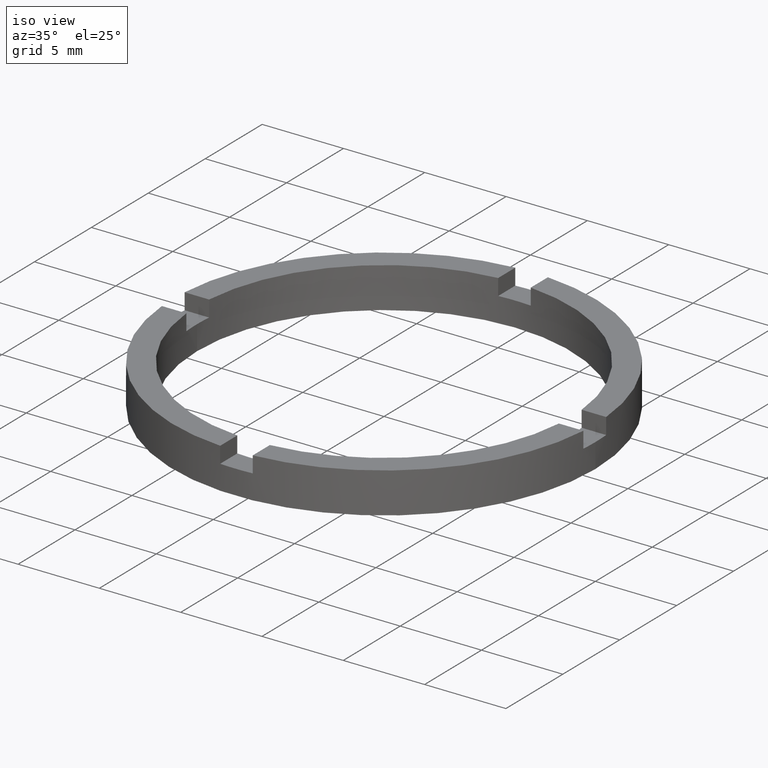
[diagram: clean part render]
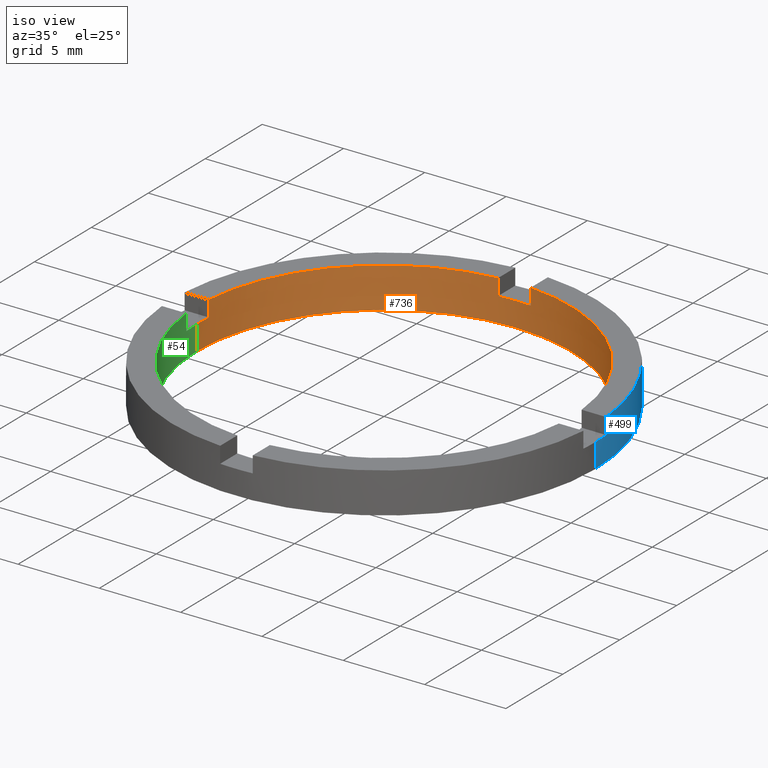
[diagram: same view with three faces highlighted in distinct colors, each labeled with its STEP entity id]
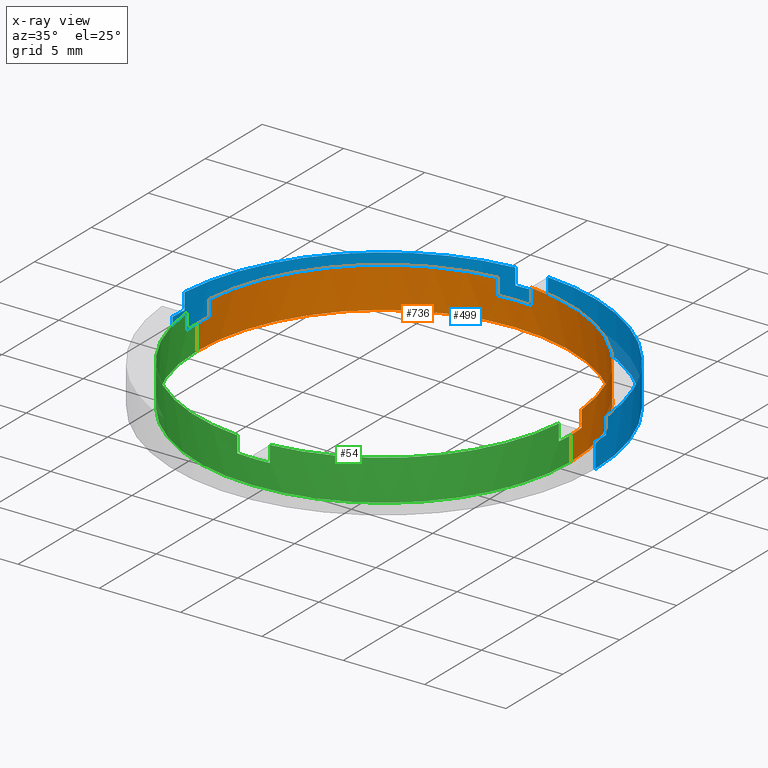
[diagram: x-ray of the same camera — body ghosted, the three highlighted faces saturated]
A machine part, iso view with three faces highlighted in distinct colors.
The next image is the same camera in x-ray (body ghosted, the three faces saturated) — at least one of them is partly hidden behind the body in this view.
Their STEP definitions:

[orange] entity #736 — the highlighted cylindrical surface (partial cylindrical patch) has radius 11.5 mm, axis along (-0, -0, -1).
#18 = AXIS2_PLACEMENT_3D ( 'NONE', #191, #681, #197 ) ;
#25 = EDGE_CURVE ( 'NONE', #164, #709, #720, .T. ) ;
#29 = CARTESIAN_POINT ( 'NONE',  ( 11.50000000000000000, 1.408343819019456176E-15, 1.500000000000000000 ) ) ;
#41 = CIRCLE ( 'NONE', #481, 11.50000000000000000 ) ;
#45 = EDGE_CURVE ( 'NONE', #461, #382, #725, .T. ) ;
#46 = CIRCLE ( 'NONE', #746, 11.50000000000000000 ) ;
#61 = CARTESIAN_POINT ( 'NONE',  ( -11.45643923738960090, 0.9999999999999779066, 2.500000000000000000 ) ) ;
#62 = AXIS2_PLACEMENT_3D ( 'NONE', #69, #764, #202 ) ;
#69 = CARTESIAN_POINT ( 'NONE',  ( 0.000000000000000000, 0.000000000000000000, 1.500000000000000000 ) ) ;
#77 = EDGE_CURVE ( 'NONE', #714, #612, #224, .T. ) ;
#78 = DIRECTION ( 'NONE',  ( 0.000000000000000000, 0.000000000000000000, 1.000000000000000000 ) ) ;
#81 = DIRECTION ( 'NONE',  ( 0.000000000000000000, 0.000000000000000000, 1.000000000000000000 ) ) ;
#85 = EDGE_CURVE ( 'NONE', #375, #413, #759, .T. ) ;
#93 = ORIENTED_EDGE ( 'NONE', *, *, #45, .F. ) ;
#95 = ORIENTED_EDGE ( 'NONE', *, *, #85, .T. ) ;
#99 = CARTESIAN_POINT ( 'NONE',  ( 11.45643923738961334, 0.9999999999998400169, 2.500000000000000000 ) ) ;
#101 = ORIENTED_EDGE ( 'NONE', *, *, #25, .F. ) ;
#111 = EDGE_LOOP ( 'NONE', ( #93, #357, #656, #654, #172, #402, #133, #697, #101, #446, #95, #362 ) ) ;
#122 = EDGE_CURVE ( 'NONE', #160, #434, #755, .T. ) ;
#133 = ORIENTED_EDGE ( 'NONE', *, *, #448, .F. ) ;
#154 = CARTESIAN_POINT ( 'NONE',  ( 11.50000000000000000, 1.408343819019456176E-15, 0.000000000000000000 ) ) ;
#160 = VERTEX_POINT ( 'NONE', #372 ) ;
#164 = VERTEX_POINT ( 'NONE', #599 ) ;
#170 = AXIS2_PLACEMENT_3D ( 'NONE', #730, #301, #482 ) ;
#172 = ORIENTED_EDGE ( 'NONE', *, *, #529, .F. ) ;
#173 = CARTESIAN_POINT ( 'NONE',  ( -11.50000000000000000, 0.000000000000000000, 2.500000000000000000 ) ) ;
#191 = CARTESIAN_POINT ( 'NONE',  ( 0.000000000000000000, 0.000000000000000000, 1.500000000000000000 ) ) ;
#196 = VECTOR ( 'NONE', #369, 1000.000000000000000 ) ;
#197 = DIRECTION ( 'NONE',  ( 1.000000000000000000, 0.000000000000000000, 0.000000000000000000 ) ) ;
#199 = VECTOR ( 'NONE', #233, 1000.000000000000000 ) ;
#202 = DIRECTION ( 'NONE',  ( 1.000000000000000000, 0.000000000000000000, 0.000000000000000000 ) ) ;
#206 = CARTESIAN_POINT ( 'NONE',  ( -1.000000000000024647, 11.45643923738959735, 1.500000000000000000 ) ) ;
#219 = DIRECTION ( 'NONE',  ( 0.000000000000000000, 0.000000000000000000, 1.000000000000000000 ) ) ;
#224 = LINE ( 'NONE', #99, #500 ) ;
#233 = DIRECTION ( 'NONE',  ( -0.000000000000000000, -0.000000000000000000, -1.000000000000000000 ) ) ;
#242 = CARTESIAN_POINT ( 'NONE',  ( 0.000000000000000000, 0.000000000000000000, 2.500000000000000000 ) ) ;
#249 = CARTESIAN_POINT ( 'NONE',  ( 0.000000000000000000, 0.000000000000000000, 2.500000000000000000 ) ) ;
#259 = LINE ( 'NONE', #453, #777 ) ;
#286 = FACE_OUTER_BOUND ( 'NONE', #111, .T. ) ;
#289 = CIRCLE ( 'NONE', #535, 11.50000000000000000 ) ;
#292 = CARTESIAN_POINT ( 'NONE',  ( -11.50000000000000000, 0.000000000000000000, 1.500000000000000000 ) ) ;
#301 = DIRECTION ( 'NONE',  ( 0.000000000000000000, 0.000000000000000000, 1.000000000000000000 ) ) ;
#306 = CYLINDRICAL_SURFACE ( 'NONE', #374, 11.50000000000000000 ) ;
#319 = CARTESIAN_POINT ( 'NONE',  ( -1.000000000000024647, 11.45643923738959735, 2.500000000000000000 ) ) ;
#322 = CARTESIAN_POINT ( 'NONE',  ( -11.50000000000000000, 0.000000000000000000, 0.000000000000000000 ) ) ;
#333 = CARTESIAN_POINT ( 'NONE',  ( 0.000000000000000000, 0.000000000000000000, 2.500000000000000000 ) ) ;
#357 = ORIENTED_EDGE ( 'NONE', *, *, #617, .T. ) ;
#362 = ORIENTED_EDGE ( 'NONE', *, *, #778, .F. ) ;
#369 = DIRECTION ( 'NONE',  ( 0.000000000000000000, 0.000000000000000000, 1.000000000000000000 ) ) ;
#372 = CARTESIAN_POINT ( 'NONE',  ( 0.9999999999999753530, 11.45643923738960090, 1.500000000000000000 ) ) ;
#374 = AXIS2_PLACEMENT_3D ( 'NONE', #249, #633, #497 ) ;
#375 = VERTEX_POINT ( 'NONE', #292 ) ;
#382 = VERTEX_POINT ( 'NONE', #154 ) ;
#389 = CARTESIAN_POINT ( 'NONE',  ( 0.000000000000000000, 0.000000000000000000, 1.500000000000000000 ) ) ;
#402 = ORIENTED_EDGE ( 'NONE', *, *, #122, .T. ) ;
#413 = VERTEX_POINT ( 'NONE', #322 ) ;
#415 = DIRECTION ( 'NONE',  ( 1.000000000000000000, 0.000000000000000000, 0.000000000000000000 ) ) ;
#420 = DIRECTION ( 'NONE',  ( -0.000000000000000000, -0.000000000000000000, -1.000000000000000000 ) ) ;
#421 = EDGE_CURVE ( 'NONE', #164, #375, #527, .T. ) ;
#430 = VERTEX_POINT ( 'NONE', #570 ) ;
#434 = VERTEX_POINT ( 'NONE', #206 ) ;
#444 = DIRECTION ( 'NONE',  ( -0.000000000000000000, -0.000000000000000000, -1.000000000000000000 ) ) ;
#446 = ORIENTED_EDGE ( 'NONE', *, *, #421, .T. ) ;
#448 = EDGE_CURVE ( 'NONE', #430, #434, #773, .T. ) ;
#453 = CARTESIAN_POINT ( 'NONE',  ( 0.9999999999999753530, 11.45643923738960090, 2.500000000000000000 ) ) ;
#461 = VERTEX_POINT ( 'NONE', #29 ) ;
#481 = AXIS2_PLACEMENT_3D ( 'NONE', #333, #219, #537 ) ;
#482 = DIRECTION ( 'NONE',  ( 1.000000000000000000, 0.000000000000000000, 0.000000000000000000 ) ) ;
#497 = DIRECTION ( 'NONE',  ( -1.000000000000000000, 0.000000000000000000, 0.000000000000000000 ) ) ;
#500 = VECTOR ( 'NONE', #420, 1000.000000000000000 ) ;
#508 = CARTESIAN_POINT ( 'NONE',  ( 11.50000000000000000, 1.408343819019456176E-15, 2.500000000000000000 ) ) ;
#515 = VECTOR ( 'NONE', #444, 1000.000000000000000 ) ;
#527 = CIRCLE ( 'NONE', #18, 11.50000000000000000 ) ;
#529 = EDGE_CURVE ( 'NONE', #160, #675, #259, .T. ) ;
#535 = AXIS2_PLACEMENT_3D ( 'NONE', #242, #723, #415 ) ;
#537 = DIRECTION ( 'NONE',  ( 1.000000000000000000, 0.000000000000000000, 0.000000000000000000 ) ) ;
#548 = CARTESIAN_POINT ( 'NONE',  ( 11.45643923738961334, 0.9999999999998400169, 2.500000000000000000 ) ) ;
#551 = CIRCLE ( 'NONE', #170, 11.50000000000000000 ) ;
#558 = DIRECTION ( 'NONE',  ( -0.000000000000000000, -0.000000000000000000, -1.000000000000000000 ) ) ;
#570 = CARTESIAN_POINT ( 'NONE',  ( -1.000000000000024647, 11.45643923738959735, 2.500000000000000000 ) ) ;
#584 = DIRECTION ( 'NONE',  ( 1.000000000000000000, 0.000000000000000000, 0.000000000000000000 ) ) ;
#595 = EDGE_CURVE ( 'NONE', #430, #709, #41, .T. ) ;
#599 = CARTESIAN_POINT ( 'NONE',  ( -11.45643923738960090, 0.9999999999999779066, 1.500000000000000000 ) ) ;
#612 = VERTEX_POINT ( 'NONE', #705 ) ;
#617 = EDGE_CURVE ( 'NONE', #461, #612, #46, .T. ) ;
#633 = DIRECTION ( 'NONE',  ( -0.000000000000000000, -0.000000000000000000, -1.000000000000000000 ) ) ;
#654 = ORIENTED_EDGE ( 'NONE', *, *, #765, .T. ) ;
#656 = ORIENTED_EDGE ( 'NONE', *, *, #77, .F. ) ;
#672 = CARTESIAN_POINT ( 'NONE',  ( 0.9999999999999753530, 11.45643923738960090, 2.500000000000000000 ) ) ;
#675 = VERTEX_POINT ( 'NONE', #672 ) ;
#681 = DIRECTION ( 'NONE',  ( 0.000000000000000000, 0.000000000000000000, 1.000000000000000000 ) ) ;
#697 = ORIENTED_EDGE ( 'NONE', *, *, #595, .T. ) ;
#705 = CARTESIAN_POINT ( 'NONE',  ( 11.45643923738961334, 0.9999999999998400169, 1.500000000000000000 ) ) ;
#709 = VERTEX_POINT ( 'NONE', #715 ) ;
#714 = VERTEX_POINT ( 'NONE', #548 ) ;
#715 = CARTESIAN_POINT ( 'NONE',  ( -11.45643923738960090, 0.9999999999999779066, 2.500000000000000000 ) ) ;
#720 = LINE ( 'NONE', #61, #196 ) ;
#723 = DIRECTION ( 'NONE',  ( 0.000000000000000000, 0.000000000000000000, 1.000000000000000000 ) ) ;
#725 = LINE ( 'NONE', #508, #199 ) ;
#730 = CARTESIAN_POINT ( 'NONE',  ( 0.000000000000000000, 0.000000000000000000, 0.000000000000000000 ) ) ;
#736 = ADVANCED_FACE ( 'NONE', ( #286 ), #306, .F. ) ;
#746 = AXIS2_PLACEMENT_3D ( 'NONE', #389, #81, #584 ) ;
#752 = VECTOR ( 'NONE', #558, 1000.000000000000000 ) ;
#755 = CIRCLE ( 'NONE', #62, 11.50000000000000000 ) ;
#759 = LINE ( 'NONE', #173, #752 ) ;
#764 = DIRECTION ( 'NONE',  ( 0.000000000000000000, -0.000000000000000000, 1.000000000000000000 ) ) ;
#765 = EDGE_CURVE ( 'NONE', #714, #675, #289, .T. ) ;
#773 = LINE ( 'NONE', #319, #515 ) ;
#777 = VECTOR ( 'NONE', #78, 1000.000000000000000 ) ;
#778 = EDGE_CURVE ( 'NONE', #382, #413, #551, .T. ) ;

[blue] entity #499 — the highlighted cylindrical surface (partial cylindrical patch) has radius 13 mm, axis along (-0, -0, -1).
#4 = CARTESIAN_POINT ( 'NONE',  ( -12.96148139681571898, 0.9999999999999776845, 1.500000000000000000 ) ) ;
#30 = CIRCLE ( 'NONE', #567, 12.99999999999999822 ) ;
#31 = CARTESIAN_POINT ( 'NONE',  ( -1.000000000000024647, 12.96148139681571543, 2.500000000000000000 ) ) ;
#33 = VECTOR ( 'NONE', #442, 1000.000000000000000 ) ;
#35 = LINE ( 'NONE', #359, #33 ) ;
#39 = VECTOR ( 'NONE', #267, 1000.000000000000000 ) ;
#63 = DIRECTION ( 'NONE',  ( 1.000000000000000000, 0.000000000000000000, 0.000000000000000000 ) ) ;
#71 = CARTESIAN_POINT ( 'NONE',  ( 0.000000000000000000, 0.000000000000000000, 2.500000000000000000 ) ) ;
#75 = CARTESIAN_POINT ( 'NONE',  ( 0.9999999999999753530, 12.96148139681571898, 1.500000000000000000 ) ) ;
#82 = CARTESIAN_POINT ( 'NONE',  ( 0.000000000000000000, 0.000000000000000000, 0.000000000000000000 ) ) ;
#84 = ORIENTED_EDGE ( 'NONE', *, *, #648, .F. ) ;
#87 = VERTEX_POINT ( 'NONE', #4 ) ;
#89 = CARTESIAN_POINT ( 'NONE',  ( 0.000000000000000000, 0.000000000000000000, 1.500000000000000000 ) ) ;
#105 = ORIENTED_EDGE ( 'NONE', *, *, #669, .F. ) ;
#110 = VERTEX_POINT ( 'NONE', #354 ) ;
#131 = ORIENTED_EDGE ( 'NONE', *, *, #713, .F. ) ;
#135 = CARTESIAN_POINT ( 'NONE',  ( 0.9999999999999753530, 12.96148139681571898, 2.500000000000000000 ) ) ;
#151 = VERTEX_POINT ( 'NONE', #387 ) ;
#152 = CARTESIAN_POINT ( 'NONE',  ( 0.000000000000000000, 0.000000000000000000, 1.500000000000000000 ) ) ;
#159 = VERTEX_POINT ( 'NONE', #559 ) ;
#169 = EDGE_CURVE ( 'NONE', #87, #619, #229, .T. ) ;
#180 = VERTEX_POINT ( 'NONE', #75 ) ;
#182 = DIRECTION ( 'NONE',  ( 0.000000000000000000, 0.000000000000000000, 1.000000000000000000 ) ) ;
#186 = AXIS2_PLACEMENT_3D ( 'NONE', #82, #282, #760 ) ;
#201 = VERTEX_POINT ( 'NONE', #519 ) ;
#203 = VERTEX_POINT ( 'NONE', #613 ) ;
#210 = DIRECTION ( 'NONE',  ( 0.000000000000000000, 0.000000000000000000, 1.000000000000000000 ) ) ;
#213 = CARTESIAN_POINT ( 'NONE',  ( 12.99999999999999822, 1.592040838891558898E-15, 2.500000000000000000 ) ) ;
#218 = CIRCLE ( 'NONE', #427, 12.99999999999999822 ) ;
#227 = EDGE_CURVE ( 'NONE', #87, #159, #218, .T. ) ;
#229 = LINE ( 'NONE', #324, #492 ) ;
#257 = LINE ( 'NONE', #135, #524 ) ;
#258 = DIRECTION ( 'NONE',  ( 0.000000000000000000, 0.000000000000000000, 1.000000000000000000 ) ) ;
#263 = LINE ( 'NONE', #376, #531 ) ;
#267 = DIRECTION ( 'NONE',  ( -0.000000000000000000, -0.000000000000000000, -1.000000000000000000 ) ) ;
#282 = DIRECTION ( 'NONE',  ( 0.000000000000000000, 0.000000000000000000, 1.000000000000000000 ) ) ;
#291 = DIRECTION ( 'NONE',  ( 0.000000000000000000, -0.000000000000000000, 1.000000000000000000 ) ) ;
#312 = CIRCLE ( 'NONE', #466, 12.99999999999999822 ) ;
#324 = CARTESIAN_POINT ( 'NONE',  ( -12.96148139681571898, 0.9999999999999776845, 2.500000000000000000 ) ) ;
#354 = CARTESIAN_POINT ( 'NONE',  ( -1.000000000000024647, 12.96148139681571543, 2.500000000000000000 ) ) ;
#359 = CARTESIAN_POINT ( 'NONE',  ( -12.99999999999999822, 0.000000000000000000, 2.500000000000000000 ) ) ;
#376 = CARTESIAN_POINT ( 'NONE',  ( 12.96148139681572964, 0.9999999999998402389, 2.500000000000000000 ) ) ;
#381 = DIRECTION ( 'NONE',  ( -1.000000000000000000, 0.000000000000000000, 0.000000000000000000 ) ) ;
#385 = DIRECTION ( 'NONE',  ( -0.000000000000000000, -0.000000000000000000, -1.000000000000000000 ) ) ;
#387 = CARTESIAN_POINT ( 'NONE',  ( 12.96148139681572964, 0.9999999999998402389, 1.500000000000000000 ) ) ;
#397 = AXIS2_PLACEMENT_3D ( 'NONE', #71, #766, #381 ) ;
#410 = ORIENTED_EDGE ( 'NONE', *, *, #227, .F. ) ;
#411 = EDGE_CURVE ( 'NONE', #680, #616, #771, .T. ) ;
#417 = EDGE_LOOP ( 'NONE', ( #131, #432, #691, #105, #410, #683, #699, #744, #84, #638, #632, #642 ) ) ;
#427 = AXIS2_PLACEMENT_3D ( 'NONE', #583, #775, #463 ) ;
#432 = ORIENTED_EDGE ( 'NONE', *, *, #556, .T. ) ;
#442 = DIRECTION ( 'NONE',  ( -0.000000000000000000, -0.000000000000000000, -1.000000000000000000 ) ) ;
#445 = VERTEX_POINT ( 'NONE', #615 ) ;
#463 = DIRECTION ( 'NONE',  ( 1.000000000000000000, 0.000000000000000000, 0.000000000000000000 ) ) ;
#464 = EDGE_CURVE ( 'NONE', #203, #671, #782, .T. ) ;
#466 = AXIS2_PLACEMENT_3D ( 'NONE', #628, #530, #473 ) ;
#467 = CARTESIAN_POINT ( 'NONE',  ( -12.99999999999999822, 0.000000000000000000, 0.000000000000000000 ) ) ;
#470 = EDGE_CURVE ( 'NONE', #203, #151, #263, .T. ) ;
#473 = DIRECTION ( 'NONE',  ( 1.000000000000000000, 0.000000000000000000, 0.000000000000000000 ) ) ;
#486 = DIRECTION ( 'NONE',  ( 1.000000000000000000, 0.000000000000000000, 0.000000000000000000 ) ) ;
#492 = VECTOR ( 'NONE', #258, 1000.000000000000000 ) ;
#499 = ADVANCED_FACE ( 'NONE', ( #518 ), #506, .T. ) ;
#502 = EDGE_CURVE ( 'NONE', #180, #671, #257, .T. ) ;
#504 = CARTESIAN_POINT ( 'NONE',  ( 0.9999999999999753530, 12.96148139681571898, 2.500000000000000000 ) ) ;
#506 = CYLINDRICAL_SURFACE ( 'NONE', #397, 12.99999999999999822 ) ;
#509 = LINE ( 'NONE', #31, #779 ) ;
#518 = FACE_OUTER_BOUND ( 'NONE', #417, .T. ) ;
#519 = CARTESIAN_POINT ( 'NONE',  ( -1.000000000000024647, 12.96148139681571543, 1.500000000000000000 ) ) ;
#523 = EDGE_CURVE ( 'NONE', #110, #201, #509, .T. ) ;
#524 = VECTOR ( 'NONE', #210, 1000.000000000000000 ) ;
#530 = DIRECTION ( 'NONE',  ( 0.000000000000000000, 0.000000000000000000, 1.000000000000000000 ) ) ;
#531 = VECTOR ( 'NONE', #695, 1000.000000000000000 ) ;
#556 = EDGE_CURVE ( 'NONE', #445, #680, #577, .T. ) ;
#559 = CARTESIAN_POINT ( 'NONE',  ( -12.99999999999999822, 0.000000000000000000, 1.500000000000000000 ) ) ;
#565 = DIRECTION ( 'NONE',  ( 0.000000000000000000, 0.000000000000000000, 1.000000000000000000 ) ) ;
#567 = AXIS2_PLACEMENT_3D ( 'NONE', #89, #182, #486 ) ;
#575 = CIRCLE ( 'NONE', #783, 12.99999999999999822 ) ;
#577 = LINE ( 'NONE', #213, #39 ) ;
#583 = CARTESIAN_POINT ( 'NONE',  ( 0.000000000000000000, 0.000000000000000000, 1.500000000000000000 ) ) ;
#598 = CARTESIAN_POINT ( 'NONE',  ( 12.99999999999999822, 1.592040838891558898E-15, 0.000000000000000000 ) ) ;
#607 = EDGE_CURVE ( 'NONE', #110, #619, #312, .T. ) ;
#613 = CARTESIAN_POINT ( 'NONE',  ( 12.96148139681572964, 0.9999999999998402389, 2.500000000000000000 ) ) ;
#615 = CARTESIAN_POINT ( 'NONE',  ( 12.99999999999999822, 1.592040838891558898E-15, 1.500000000000000000 ) ) ;
#616 = VERTEX_POINT ( 'NONE', #467 ) ;
#619 = VERTEX_POINT ( 'NONE', #772 ) ;
#628 = CARTESIAN_POINT ( 'NONE',  ( 0.000000000000000000, 0.000000000000000000, 2.500000000000000000 ) ) ;
#632 = ORIENTED_EDGE ( 'NONE', *, *, #464, .F. ) ;
#638 = ORIENTED_EDGE ( 'NONE', *, *, #502, .T. ) ;
#642 = ORIENTED_EDGE ( 'NONE', *, *, #470, .T. ) ;
#648 = EDGE_CURVE ( 'NONE', #180, #201, #575, .T. ) ;
#669 = EDGE_CURVE ( 'NONE', #159, #616, #35, .T. ) ;
#671 = VERTEX_POINT ( 'NONE', #504 ) ;
#680 = VERTEX_POINT ( 'NONE', #598 ) ;
#683 = ORIENTED_EDGE ( 'NONE', *, *, #169, .T. ) ;
#691 = ORIENTED_EDGE ( 'NONE', *, *, #411, .T. ) ;
#695 = DIRECTION ( 'NONE',  ( -0.000000000000000000, -0.000000000000000000, -1.000000000000000000 ) ) ;
#699 = ORIENTED_EDGE ( 'NONE', *, *, #607, .F. ) ;
#713 = EDGE_CURVE ( 'NONE', #445, #151, #30, .T. ) ;
#732 = AXIS2_PLACEMENT_3D ( 'NONE', #753, #565, #748 ) ;
#744 = ORIENTED_EDGE ( 'NONE', *, *, #523, .T. ) ;
#748 = DIRECTION ( 'NONE',  ( 1.000000000000000000, 0.000000000000000000, 0.000000000000000000 ) ) ;
#753 = CARTESIAN_POINT ( 'NONE',  ( 0.000000000000000000, 0.000000000000000000, 2.500000000000000000 ) ) ;
#760 = DIRECTION ( 'NONE',  ( 1.000000000000000000, 0.000000000000000000, 0.000000000000000000 ) ) ;
#766 = DIRECTION ( 'NONE',  ( -0.000000000000000000, -0.000000000000000000, -1.000000000000000000 ) ) ;
#771 = CIRCLE ( 'NONE', #186, 12.99999999999999822 ) ;
#772 = CARTESIAN_POINT ( 'NONE',  ( -12.96148139681571898, 0.9999999999999776845, 2.500000000000000000 ) ) ;
#775 = DIRECTION ( 'NONE',  ( 0.000000000000000000, 0.000000000000000000, 1.000000000000000000 ) ) ;
#779 = VECTOR ( 'NONE', #385, 1000.000000000000000 ) ;
#782 = CIRCLE ( 'NONE', #732, 12.99999999999999822 ) ;
#783 = AXIS2_PLACEMENT_3D ( 'NONE', #152, #291, #63 ) ;

[green] entity #54 — the highlighted cylindrical surface (partial cylindrical patch) has radius 11.5 mm, axis along (-0, -0, -1).
#14 = CIRCLE ( 'NONE', #321, 11.50000000000000000 ) ;
#21 = DIRECTION ( 'NONE',  ( -0.000000000000000000, 0.000000000000000000, 1.000000000000000000 ) ) ;
#27 = CARTESIAN_POINT ( 'NONE',  ( 0.000000000000000000, 0.000000000000000000, 0.000000000000000000 ) ) ;
#29 = CARTESIAN_POINT ( 'NONE',  ( 11.50000000000000000, 1.408343819019456176E-15, 1.500000000000000000 ) ) ;
#45 = EDGE_CURVE ( 'NONE', #461, #382, #725, .T. ) ;
#48 = DIRECTION ( 'NONE',  ( 1.000000000000000000, 0.000000000000000000, 0.000000000000000000 ) ) ;
#52 = DIRECTION ( 'NONE',  ( 0.000000000000000000, 0.000000000000000000, 1.000000000000000000 ) ) ;
#54 = ADVANCED_FACE ( 'NONE', ( #472 ), #212, .F. ) ;
#55 = AXIS2_PLACEMENT_3D ( 'NONE', #555, #646, #48 ) ;
#66 = EDGE_CURVE ( 'NONE', #718, #90, #222, .T. ) ;
#67 = DIRECTION ( 'NONE',  ( 1.000000000000000000, 0.000000000000000000, 0.000000000000000000 ) ) ;
#73 = AXIS2_PLACEMENT_3D ( 'NONE', #673, #21, #67 ) ;
#79 = DIRECTION ( 'NONE',  ( 1.000000000000000000, 0.000000000000000000, 0.000000000000000000 ) ) ;
#85 = EDGE_CURVE ( 'NONE', #375, #413, #759, .T. ) ;
#90 = VERTEX_POINT ( 'NONE', #179 ) ;
#92 = DIRECTION ( 'NONE',  ( -0.000000000000000000, -0.000000000000000000, -1.000000000000000000 ) ) ;
#96 = CARTESIAN_POINT ( 'NONE',  ( -1.000000000000163647, -11.45643923738958669, 2.500000000000000000 ) ) ;
#102 = CARTESIAN_POINT ( 'NONE',  ( 0.000000000000000000, 0.000000000000000000, 1.500000000000000000 ) ) ;
#118 = EDGE_CURVE ( 'NONE', #375, #423, #493, .T. ) ;
#144 = DIRECTION ( 'NONE',  ( 0.000000000000000000, 0.000000000000000000, 1.000000000000000000 ) ) ;
#154 = CARTESIAN_POINT ( 'NONE',  ( 11.50000000000000000, 1.408343819019456176E-15, 0.000000000000000000 ) ) ;
#158 = CARTESIAN_POINT ( 'NONE',  ( 0.000000000000000000, 0.000000000000000000, 2.500000000000000000 ) ) ;
#162 = VERTEX_POINT ( 'NONE', #384 ) ;
#165 = ORIENTED_EDGE ( 'NONE', *, *, #293, .T. ) ;
#173 = CARTESIAN_POINT ( 'NONE',  ( -11.50000000000000000, 0.000000000000000000, 2.500000000000000000 ) ) ;
#179 = CARTESIAN_POINT ( 'NONE',  ( 0.9999999999998363531, -11.45643923738961334, 1.500000000000000000 ) ) ;
#198 = CARTESIAN_POINT ( 'NONE',  ( -11.45643923738959735, -1.000000000000022204, 2.500000000000000000 ) ) ;
#199 = VECTOR ( 'NONE', #233, 1000.000000000000000 ) ;
#208 = ORIENTED_EDGE ( 'NONE', *, *, #388, .F. ) ;
#212 = CYLINDRICAL_SURFACE ( 'NONE', #750, 11.50000000000000000 ) ;
#214 = DIRECTION ( 'NONE',  ( 0.000000000000000000, 0.000000000000000000, 1.000000000000000000 ) ) ;
#222 = LINE ( 'NONE', #346, #757 ) ;
#225 = DIRECTION ( 'NONE',  ( -1.000000000000000000, 0.000000000000000000, 0.000000000000000000 ) ) ;
#226 = AXIS2_PLACEMENT_3D ( 'NONE', #505, #144, #561 ) ;
#233 = DIRECTION ( 'NONE',  ( -0.000000000000000000, -0.000000000000000000, -1.000000000000000000 ) ) ;
#237 = CIRCLE ( 'NONE', #226, 11.50000000000000000 ) ;
#246 = VECTOR ( 'NONE', #214, 1000.000000000000000 ) ;
#251 = VECTOR ( 'NONE', #582, 1000.000000000000000 ) ;
#255 = LINE ( 'NONE', #532, #251 ) ;
#261 = DIRECTION ( 'NONE',  ( 1.000000000000000000, 0.000000000000000000, 0.000000000000000000 ) ) ;
#277 = LINE ( 'NONE', #96, #544 ) ;
#284 = EDGE_CURVE ( 'NONE', #698, #162, #277, .T. ) ;
#292 = CARTESIAN_POINT ( 'NONE',  ( -11.50000000000000000, 0.000000000000000000, 1.500000000000000000 ) ) ;
#293 = EDGE_CURVE ( 'NONE', #721, #461, #14, .T. ) ;
#304 = DIRECTION ( 'NONE',  ( 0.000000000000000000, 0.000000000000000000, 1.000000000000000000 ) ) ;
#321 = AXIS2_PLACEMENT_3D ( 'NONE', #102, #304, #79 ) ;
#322 = CARTESIAN_POINT ( 'NONE',  ( -11.50000000000000000, 0.000000000000000000, 0.000000000000000000 ) ) ;
#325 = CARTESIAN_POINT ( 'NONE',  ( -11.45643923738959735, -1.000000000000022204, 1.500000000000000000 ) ) ;
#336 = CARTESIAN_POINT ( 'NONE',  ( 11.45643923738958669, -1.000000000000160094, 1.500000000000000000 ) ) ;
#341 = ORIENTED_EDGE ( 'NONE', *, *, #284, .F. ) ;
#346 = CARTESIAN_POINT ( 'NONE',  ( 0.9999999999998363531, -11.45643923738961334, 2.500000000000000000 ) ) ;
#370 = VERTEX_POINT ( 'NONE', #198 ) ;
#375 = VERTEX_POINT ( 'NONE', #292 ) ;
#382 = VERTEX_POINT ( 'NONE', #154 ) ;
#384 = CARTESIAN_POINT ( 'NONE',  ( -1.000000000000163647, -11.45643923738958669, 2.500000000000000000 ) ) ;
#388 = EDGE_CURVE ( 'NONE', #721, #404, #737, .T. ) ;
#401 = EDGE_CURVE ( 'NONE', #370, #423, #255, .T. ) ;
#404 = VERTEX_POINT ( 'NONE', #630 ) ;
#413 = VERTEX_POINT ( 'NONE', #322 ) ;
#423 = VERTEX_POINT ( 'NONE', #325 ) ;
#436 = EDGE_CURVE ( 'NONE', #413, #382, #517, .T. ) ;
#438 = ORIENTED_EDGE ( 'NONE', *, *, #436, .F. ) ;
#450 = DIRECTION ( 'NONE',  ( 1.000000000000000000, 0.000000000000000000, 0.000000000000000000 ) ) ;
#461 = VERTEX_POINT ( 'NONE', #29 ) ;
#465 = ORIENTED_EDGE ( 'NONE', *, *, #85, .F. ) ;
#472 = FACE_OUTER_BOUND ( 'NONE', #700, .T. ) ;
#477 = CARTESIAN_POINT ( 'NONE',  ( 0.9999999999998363531, -11.45643923738961334, 2.500000000000000000 ) ) ;
#484 = ORIENTED_EDGE ( 'NONE', *, *, #758, .T. ) ;
#493 = CIRCLE ( 'NONE', #762, 11.50000000000000000 ) ;
#505 = CARTESIAN_POINT ( 'NONE',  ( 0.000000000000000000, 0.000000000000000000, 2.500000000000000000 ) ) ;
#508 = CARTESIAN_POINT ( 'NONE',  ( 11.50000000000000000, 1.408343819019456176E-15, 2.500000000000000000 ) ) ;
#517 = CIRCLE ( 'NONE', #521, 11.50000000000000000 ) ;
#521 = AXIS2_PLACEMENT_3D ( 'NONE', #27, #526, #261 ) ;
#525 = DIRECTION ( 'NONE',  ( 0.000000000000000000, 0.000000000000000000, 1.000000000000000000 ) ) ;
#526 = DIRECTION ( 'NONE',  ( 0.000000000000000000, 0.000000000000000000, 1.000000000000000000 ) ) ;
#532 = CARTESIAN_POINT ( 'NONE',  ( -11.45643923738959735, -1.000000000000022204, 2.500000000000000000 ) ) ;
#544 = VECTOR ( 'NONE', #52, 1000.000000000000000 ) ;
#546 = EDGE_CURVE ( 'NONE', #718, #404, #237, .T. ) ;
#555 = CARTESIAN_POINT ( 'NONE',  ( 0.000000000000000000, 0.000000000000000000, 2.500000000000000000 ) ) ;
#558 = DIRECTION ( 'NONE',  ( -0.000000000000000000, -0.000000000000000000, -1.000000000000000000 ) ) ;
#561 = DIRECTION ( 'NONE',  ( 1.000000000000000000, 0.000000000000000000, 0.000000000000000000 ) ) ;
#564 = CARTESIAN_POINT ( 'NONE',  ( 0.000000000000000000, 0.000000000000000000, 1.500000000000000000 ) ) ;
#566 = EDGE_CURVE ( 'NONE', #698, #90, #574, .T. ) ;
#568 = CIRCLE ( 'NONE', #55, 11.50000000000000000 ) ;
#574 = CIRCLE ( 'NONE', #73, 11.50000000000000000 ) ;
#582 = DIRECTION ( 'NONE',  ( -0.000000000000000000, -0.000000000000000000, -1.000000000000000000 ) ) ;
#597 = DIRECTION ( 'NONE',  ( -0.000000000000000000, -0.000000000000000000, -1.000000000000000000 ) ) ;
#621 = ORIENTED_EDGE ( 'NONE', *, *, #118, .T. ) ;
#625 = ORIENTED_EDGE ( 'NONE', *, *, #401, .F. ) ;
#630 = CARTESIAN_POINT ( 'NONE',  ( 11.45643923738958669, -1.000000000000160094, 2.500000000000000000 ) ) ;
#646 = DIRECTION ( 'NONE',  ( 0.000000000000000000, 0.000000000000000000, 1.000000000000000000 ) ) ;
#658 = ORIENTED_EDGE ( 'NONE', *, *, #45, .T. ) ;
#665 = ORIENTED_EDGE ( 'NONE', *, *, #546, .T. ) ;
#673 = CARTESIAN_POINT ( 'NONE',  ( 0.000000000000000000, 0.000000000000000000, 1.500000000000000000 ) ) ;
#684 = ORIENTED_EDGE ( 'NONE', *, *, #66, .F. ) ;
#693 = ORIENTED_EDGE ( 'NONE', *, *, #566, .T. ) ;
#698 = VERTEX_POINT ( 'NONE', #742 ) ;
#700 = EDGE_LOOP ( 'NONE', ( #165, #658, #438, #465, #621, #625, #484, #341, #693, #684, #665, #208 ) ) ;
#718 = VERTEX_POINT ( 'NONE', #477 ) ;
#721 = VERTEX_POINT ( 'NONE', #336 ) ;
#725 = LINE ( 'NONE', #508, #199 ) ;
#737 = LINE ( 'NONE', #767, #246 ) ;
#742 = CARTESIAN_POINT ( 'NONE',  ( -1.000000000000163647, -11.45643923738958669, 1.500000000000000000 ) ) ;
#750 = AXIS2_PLACEMENT_3D ( 'NONE', #158, #597, #225 ) ;
#752 = VECTOR ( 'NONE', #558, 1000.000000000000000 ) ;
#757 = VECTOR ( 'NONE', #92, 1000.000000000000000 ) ;
#758 = EDGE_CURVE ( 'NONE', #370, #162, #568, .T. ) ;
#759 = LINE ( 'NONE', #173, #752 ) ;
#762 = AXIS2_PLACEMENT_3D ( 'NONE', #564, #525, #450 ) ;
#767 = CARTESIAN_POINT ( 'NONE',  ( 11.45643923738958669, -1.000000000000160094, 2.500000000000000000 ) ) ;